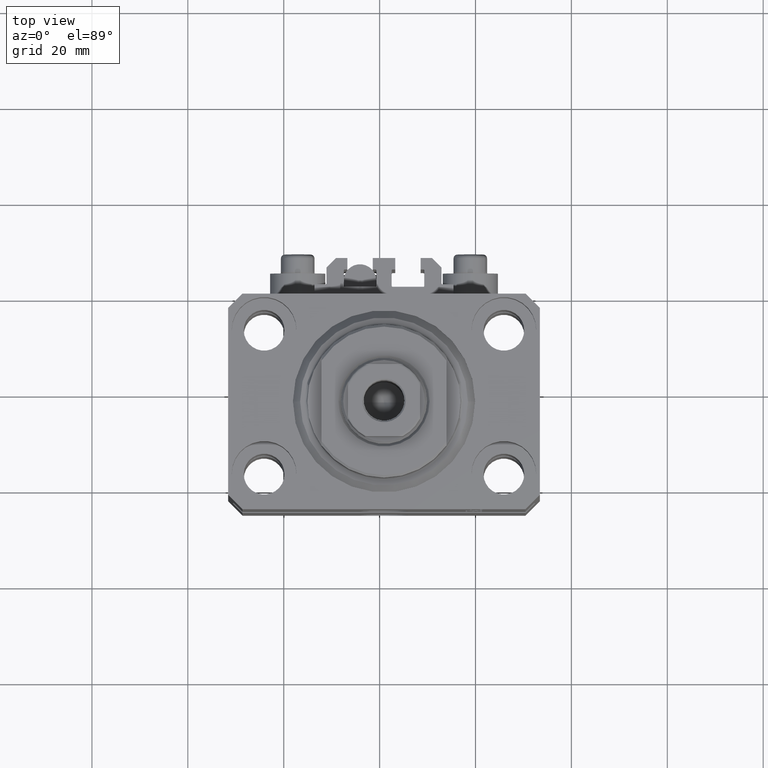
[diagram: clean part render]
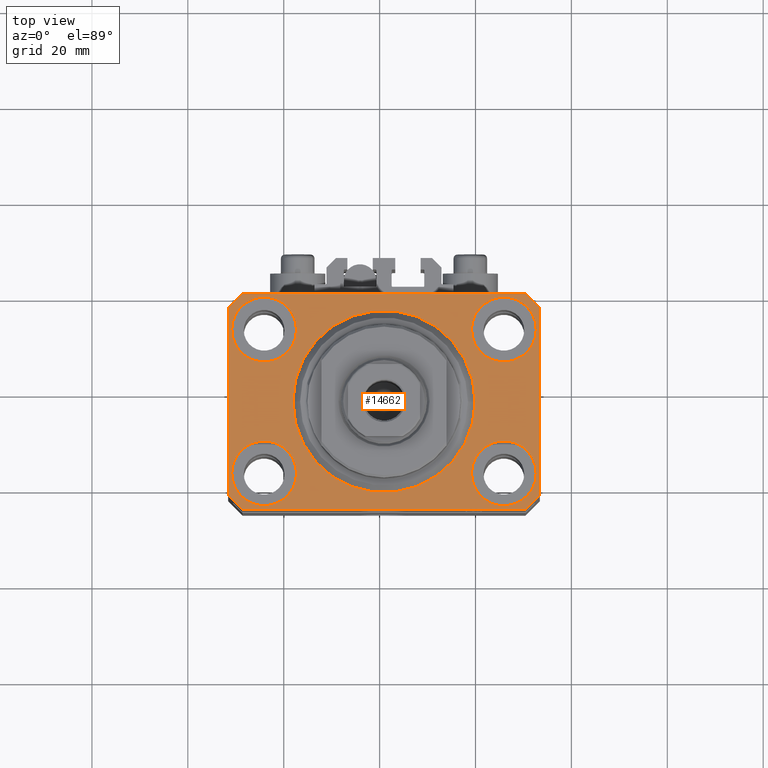
[diagram: same view with one face highlighted and labeled with its STEP entity id]
A machine part, top view. The second image highlights one B-rep face of the part: STEP entity #14662.
In plain terms, the highlighted planar face has unit normal (0, 0, 1).
Its self-contained STEP definition (entity closure, byte-faithful):
#88 = EDGE_CURVE ( 'NONE', #23724, #19859, #40568, .T. ) ;
#847 = ORIENTED_EDGE ( 'NONE', *, *, #43841, .T. ) ;
#1159 = CARTESIAN_POINT ( 'NONE',  ( 29.49999999999707967, 22.49999999999951328, 0.000000000000000000 ) ) ;
#1377 = EDGE_CURVE ( 'NONE', #38597, #22894, #27231, .T. ) ;
#1390 = ORIENTED_EDGE ( 'NONE', *, *, #25580, .T. ) ;
#1662 = VECTOR ( 'NONE', #37245, 1000.000000000000000 ) ;
#2057 = VERTEX_POINT ( 'NONE', #9798 ) ;
#2126 = DIRECTION ( 'NONE',  ( 0.000000000000000000, 0.000000000000000000, 1.000000000000000000 ) ) ;
#2645 = ORIENTED_EDGE ( 'NONE', *, *, #46951, .T. ) ;
#3162 = DIRECTION ( 'NONE',  ( 1.000000000000000000, 0.000000000000000000, 0.000000000000000000 ) ) ;
#3194 = CIRCLE ( 'NONE', #30299, 19.00000000000000000 ) ;
#3261 = CARTESIAN_POINT ( 'NONE',  ( -18.24999999995846167, -15.00000000000000000, 0.000000000000000000 ) ) ;
#3754 = ORIENTED_EDGE ( 'NONE', *, *, #12378, .F. ) ;
#3864 = LINE ( 'NONE', #40705, #9604 ) ;
#3946 = DIRECTION ( 'NONE',  ( 0.000000000000000000, -1.000000000000000000, 0.000000000000000000 ) ) ;
#4182 = ORIENTED_EDGE ( 'NONE', *, *, #45589, .T. ) ;
#4224 = DIRECTION ( 'NONE',  ( 0.000000000000000000, 0.000000000000000000, 1.000000000000000000 ) ) ;
#4245 = AXIS2_PLACEMENT_3D ( 'NONE', #18670, #18431, #3162 ) ;
#4725 = EDGE_LOOP ( 'NONE', ( #19856, #3754 ) ) ;
#5172 = DIRECTION ( 'NONE',  ( -0.7071067811865474617, -0.7071067811865474617, 0.000000000000000000 ) ) ;
#5337 = ORIENTED_EDGE ( 'NONE', *, *, #36815, .F. ) ;
#5353 = EDGE_CURVE ( 'NONE', #40491, #31925, #10438, .T. ) ;
#5462 = CARTESIAN_POINT ( 'NONE',  ( -31.75000000002253842, 15.00000000000000000, 0.000000000000000000 ) ) ;
#5734 = CARTESIAN_POINT ( 'NONE',  ( 0.000000000000000000, 0.000000000000000000, 0.000000000000000000 ) ) ;
#7035 = DIRECTION ( 'NONE',  ( 1.000000000000000000, 0.000000000000000000, 0.000000000000000000 ) ) ;
#7051 = EDGE_LOOP ( 'NONE', ( #22707, #28568 ) ) ;
#7092 = CARTESIAN_POINT ( 'NONE',  ( -29.49999999999650413, -22.49999999999949907, 0.000000000000000000 ) ) ;
#7159 = VERTEX_POINT ( 'NONE', #45702 ) ;
#7603 = CIRCLE ( 'NONE', #31605, 6.749999999958452790 ) ;
#7692 = CARTESIAN_POINT ( 'NONE',  ( 29.49999999999707967, 22.49999999999951328, 0.000000000000000000 ) ) ;
#9510 = AXIS2_PLACEMENT_3D ( 'NONE', #35889, #47295, #7035 ) ;
#9604 = VECTOR ( 'NONE', #10898, 1000.000000000000000 ) ;
#9655 = CARTESIAN_POINT ( 'NONE',  ( -29.49999999999650413, -22.49999999999949907, 0.000000000000000000 ) ) ;
#9798 = CARTESIAN_POINT ( 'NONE',  ( 32.49999999999702993, 19.49999999999945999, 0.000000000000000000 ) ) ;
#10192 = CIRCLE ( 'NONE', #28777, 6.749999999977465137 ) ;
#10241 = CARTESIAN_POINT ( 'NONE',  ( -31.75000000004154899, -15.00000000000000000, 0.000000000000000000 ) ) ;
#10369 = AXIS2_PLACEMENT_3D ( 'NONE', #35567, #2126, #38720 ) ;
#10404 = CARTESIAN_POINT ( 'NONE',  ( 32.49999999999702993, 19.49999999999945999, 0.000000000000000000 ) ) ;
#10438 = CIRCLE ( 'NONE', #4245, 6.749999999977465137 ) ;
#10898 = DIRECTION ( 'NONE',  ( 0.7071067811865483499, 0.7071067811865466846, 0.000000000000000000 ) ) ;
#10914 = EDGE_LOOP ( 'NONE', ( #33641, #37979 ) ) ;
#11257 = VERTEX_POINT ( 'NONE', #12615 ) ;
#11368 = CARTESIAN_POINT ( 'NONE',  ( 18.25000000002253842, -15.00000000000000000, 0.000000000000000000 ) ) ;
#11451 = LINE ( 'NONE', #47838, #21147 ) ;
#11529 = CARTESIAN_POINT ( 'NONE',  ( 31.74999999997746869, -15.00000000000000000, 0.000000000000000000 ) ) ;
#11921 = CARTESIAN_POINT ( 'NONE',  ( 0.000000000000000000, 0.000000000000000000, 0.000000000000000000 ) ) ;
#12378 = EDGE_CURVE ( 'NONE', #47072, #14259, #28475, .T. ) ;
#12615 = CARTESIAN_POINT ( 'NONE',  ( 18.25000000004154543, 15.00000000000000888, 0.000000000000000000 ) ) ;
#12814 = DIRECTION ( 'NONE',  ( 0.000000000000000000, 0.000000000000000000, 1.000000000000000000 ) ) ;
#14075 = VECTOR ( 'NONE', #17456, 1000.000000000000000 ) ;
#14259 = VERTEX_POINT ( 'NONE', #28378 ) ;
#14662 = ADVANCED_FACE ( 'NONE', ( #45926, #19017, #19984, #23614, #30412, #16114 ), #37423, .T. ) ;
#14749 = VERTEX_POINT ( 'NONE', #39110 ) ;
#14826 = LINE ( 'NONE', #29609, #36111 ) ;
#14897 = DIRECTION ( 'NONE',  ( 1.000000000000000000, 0.000000000000000000, 0.000000000000000000 ) ) ;
#15547 = CARTESIAN_POINT ( 'NONE',  ( -32.49999999999650413, 19.49999999999949907, 0.000000000000000000 ) ) ;
#15694 = CIRCLE ( 'NONE', #9510, 6.749999999958452790 ) ;
#16114 = FACE_OUTER_BOUND ( 'NONE', #18033, .T. ) ;
#17115 = DIRECTION ( 'NONE',  ( 1.000000000000000000, 0.000000000000000000, 0.000000000000000000 ) ) ;
#17175 = CARTESIAN_POINT ( 'NONE',  ( 31.74999999995845101, 15.00000000000000888, 0.000000000000000000 ) ) ;
#17456 = DIRECTION ( 'NONE',  ( -0.7071067811865352493, 0.7071067811865597852, 0.000000000000000000 ) ) ;
#17547 = EDGE_LOOP ( 'NONE', ( #30802, #43350 ) ) ;
#18033 = EDGE_LOOP ( 'NONE', ( #19394, #22162, #847, #1390, #46479, #4182, #2645, #27577 ) ) ;
#18431 = DIRECTION ( 'NONE',  ( 0.000000000000000000, 0.000000000000000000, 1.000000000000000000 ) ) ;
#18479 = DIRECTION ( 'NONE',  ( 1.000000000000000000, 1.176083712526788232E-16, 0.000000000000000000 ) ) ;
#18649 = VECTOR ( 'NONE', #18479, 1000.000000000000000 ) ;
#18670 = CARTESIAN_POINT ( 'NONE',  ( 25.00000000000000355, -15.00000000000000000, 0.000000000000000000 ) ) ;
#19017 = FACE_BOUND ( 'NONE', #39598, .T. ) ;
#19394 = ORIENTED_EDGE ( 'NONE', *, *, #35666, .T. ) ;
#19612 = CARTESIAN_POINT ( 'NONE',  ( -32.49999999999650413, -19.49999999999949907, 0.000000000000000000 ) ) ;
#19856 = ORIENTED_EDGE ( 'NONE', *, *, #33912, .F. ) ;
#19859 = VERTEX_POINT ( 'NONE', #3261 ) ;
#19973 = VERTEX_POINT ( 'NONE', #42262 ) ;
#19984 = FACE_BOUND ( 'NONE', #7051, .T. ) ;
#20206 = EDGE_CURVE ( 'NONE', #37803, #7159, #33495, .T. ) ;
#20511 = DIRECTION ( 'NONE',  ( 1.000000000000000000, 0.000000000000000000, 0.000000000000000000 ) ) ;
#21147 = VECTOR ( 'NONE', #3946, 1000.000000000000000 ) ;
#22019 = VECTOR ( 'NONE', #5172, 1000.000000000000114 ) ;
#22162 = ORIENTED_EDGE ( 'NONE', *, *, #1377, .T. ) ;
#22329 = DIRECTION ( 'NONE',  ( 0.7071067811865474617, -0.7071067811865474617, 0.000000000000000000 ) ) ;
#22707 = ORIENTED_EDGE ( 'NONE', *, *, #27738, .F. ) ;
#22881 = DIRECTION ( 'NONE',  ( 1.000000000000000000, 0.000000000000000000, -0.000000000000000000 ) ) ;
#22894 = VERTEX_POINT ( 'NONE', #15547 ) ;
#23614 = FACE_BOUND ( 'NONE', #4725, .T. ) ;
#23724 = VERTEX_POINT ( 'NONE', #10241 ) ;
#24241 = LINE ( 'NONE', #10404, #14075 ) ;
#24753 = EDGE_CURVE ( 'NONE', #19973, #33077, #31503, .T. ) ;
#25580 = EDGE_CURVE ( 'NONE', #45634, #37803, #14826, .T. ) ;
#25788 = CARTESIAN_POINT ( 'NONE',  ( 24.99999999999999645, 15.00000000000000888, 0.000000000000000000 ) ) ;
#25840 = AXIS2_PLACEMENT_3D ( 'NONE', #31665, #42563, #17115 ) ;
#26324 = CARTESIAN_POINT ( 'NONE',  ( -25.00000000000000355, 15.00000000000000000, 0.000000000000000000 ) ) ;
#26555 = DIRECTION ( 'NONE',  ( 1.000000000000000000, 0.000000000000000000, 0.000000000000000000 ) ) ;
#26801 = DIRECTION ( 'NONE',  ( 0.000000000000000000, 0.000000000000000000, 1.000000000000000000 ) ) ;
#27231 = LINE ( 'NONE', #28600, #22019 ) ;
#27577 = ORIENTED_EDGE ( 'NONE', *, *, #36630, .T. ) ;
#27738 = EDGE_CURVE ( 'NONE', #31097, #11257, #7603, .T. ) ;
#28141 = CARTESIAN_POINT ( 'NONE',  ( -29.49999999999650413, 22.49999999999949907, 0.000000000000000000 ) ) ;
#28378 = CARTESIAN_POINT ( 'NONE',  ( -18.24999999997747224, 15.00000000000000000, 0.000000000000000000 ) ) ;
#28475 = CIRCLE ( 'NONE', #33092, 6.750000000022533087 ) ;
#28568 = ORIENTED_EDGE ( 'NONE', *, *, #41956, .F. ) ;
#28600 = CARTESIAN_POINT ( 'NONE',  ( -29.49999999999650413, 22.49999999999949907, 0.000000000000000000 ) ) ;
#28777 = AXIS2_PLACEMENT_3D ( 'NONE', #30998, #12814, #38486 ) ;
#28993 = LINE ( 'NONE', #43773, #32878 ) ;
#29160 = AXIS2_PLACEMENT_3D ( 'NONE', #5734, #42803, #20511 ) ;
#29290 = VERTEX_POINT ( 'NONE', #1159 ) ;
#29490 = DIRECTION ( 'NONE',  ( 0.000000000000000000, 0.000000000000000000, 1.000000000000000000 ) ) ;
#29609 = CARTESIAN_POINT ( 'NONE',  ( -32.49999999999650413, -19.49999999999949907, 0.000000000000000000 ) ) ;
#30169 = DIRECTION ( 'NONE',  ( 0.000000000000000000, 0.000000000000000000, 1.000000000000000000 ) ) ;
#30299 = AXIS2_PLACEMENT_3D ( 'NONE', #11921, #30347, #38087 ) ;
#30347 = DIRECTION ( 'NONE',  ( 0.000000000000000000, 0.000000000000000000, 1.000000000000000000 ) ) ;
#30412 = FACE_BOUND ( 'NONE', #10914, .T. ) ;
#30449 = CARTESIAN_POINT ( 'NONE',  ( -25.00000000000000355, 15.00000000000000000, 0.000000000000000000 ) ) ;
#30657 = CARTESIAN_POINT ( 'NONE',  ( 0.000000000000000000, 0.000000000000000000, 0.000000000000000000 ) ) ;
#30802 = ORIENTED_EDGE ( 'NONE', *, *, #46517, .F. ) ;
#30998 = CARTESIAN_POINT ( 'NONE',  ( 25.00000000000000355, -15.00000000000000000, 0.000000000000000000 ) ) ;
#31043 = AXIS2_PLACEMENT_3D ( 'NONE', #30449, #26801, #26555 ) ;
#31097 = VERTEX_POINT ( 'NONE', #17175 ) ;
#31503 = CIRCLE ( 'NONE', #29160, 19.00000000000000000 ) ;
#31605 = AXIS2_PLACEMENT_3D ( 'NONE', #25788, #4224, #14897 ) ;
#31665 = CARTESIAN_POINT ( 'NONE',  ( -25.00000000000000355, -15.00000000000000000, 0.000000000000000000 ) ) ;
#31925 = VERTEX_POINT ( 'NONE', #11368 ) ;
#32878 = VECTOR ( 'NONE', #38947, 1000.000000000000000 ) ;
#33077 = VERTEX_POINT ( 'NONE', #44055 ) ;
#33092 = AXIS2_PLACEMENT_3D ( 'NONE', #26324, #29490, #36752 ) ;
#33380 = LINE ( 'NONE', #7692, #1662 ) ;
#33495 = LINE ( 'NONE', #7092, #18649 ) ;
#33641 = ORIENTED_EDGE ( 'NONE', *, *, #38466, .F. ) ;
#33912 = EDGE_CURVE ( 'NONE', #14259, #47072, #44166, .T. ) ;
#35567 = CARTESIAN_POINT ( 'NONE',  ( -25.00000000000000355, -15.00000000000000000, 0.000000000000000000 ) ) ;
#35666 = EDGE_CURVE ( 'NONE', #29290, #38597, #33380, .T. ) ;
#35889 = CARTESIAN_POINT ( 'NONE',  ( 24.99999999999999645, 15.00000000000000888, 0.000000000000000000 ) ) ;
#36111 = VECTOR ( 'NONE', #22329, 1000.000000000000114 ) ;
#36630 = EDGE_CURVE ( 'NONE', #2057, #29290, #24241, .T. ) ;
#36752 = DIRECTION ( 'NONE',  ( 1.000000000000000000, 0.000000000000000000, 0.000000000000000000 ) ) ;
#36815 = EDGE_CURVE ( 'NONE', #31925, #40491, #10192, .T. ) ;
#37245 = DIRECTION ( 'NONE',  ( -1.000000000000000000, -2.352167425053553784E-16, 0.000000000000000000 ) ) ;
#37423 = PLANE ( 'NONE',  #40913 ) ;
#37803 = VERTEX_POINT ( 'NONE', #9655 ) ;
#37812 = ORIENTED_EDGE ( 'NONE', *, *, #5353, .F. ) ;
#37979 = ORIENTED_EDGE ( 'NONE', *, *, #24753, .F. ) ;
#38087 = DIRECTION ( 'NONE',  ( 1.000000000000000000, 0.000000000000000000, 0.000000000000000000 ) ) ;
#38466 = EDGE_CURVE ( 'NONE', #33077, #19973, #3194, .T. ) ;
#38486 = DIRECTION ( 'NONE',  ( 1.000000000000000000, 0.000000000000000000, 0.000000000000000000 ) ) ;
#38597 = VERTEX_POINT ( 'NONE', #28141 ) ;
#38720 = DIRECTION ( 'NONE',  ( 1.000000000000000000, 0.000000000000000000, 0.000000000000000000 ) ) ;
#38947 = DIRECTION ( 'NONE',  ( 1.334402673828349134E-14, 1.000000000000000000, 0.000000000000000000 ) ) ;
#39110 = CARTESIAN_POINT ( 'NONE',  ( 32.49999999999651124, -19.49999999999949196, 0.000000000000000000 ) ) ;
#39598 = EDGE_LOOP ( 'NONE', ( #37812, #5337 ) ) ;
#40491 = VERTEX_POINT ( 'NONE', #11529 ) ;
#40568 = CIRCLE ( 'NONE', #10369, 6.750000000041541881 ) ;
#40705 = CARTESIAN_POINT ( 'NONE',  ( 29.49999999999650413, -22.49999999999949196, 0.000000000000000000 ) ) ;
#40913 = AXIS2_PLACEMENT_3D ( 'NONE', #30657, #30169, #22881 ) ;
#41956 = EDGE_CURVE ( 'NONE', #11257, #31097, #15694, .T. ) ;
#42262 = CARTESIAN_POINT ( 'NONE',  ( -19.00000000000000000, 2.326828918379970970E-15, 0.000000000000000000 ) ) ;
#42563 = DIRECTION ( 'NONE',  ( 0.000000000000000000, 0.000000000000000000, 1.000000000000000000 ) ) ;
#42803 = DIRECTION ( 'NONE',  ( 0.000000000000000000, 0.000000000000000000, 1.000000000000000000 ) ) ;
#43350 = ORIENTED_EDGE ( 'NONE', *, *, #88, .F. ) ;
#43773 = CARTESIAN_POINT ( 'NONE',  ( 32.49999999999651124, -19.49999999999949196, 0.000000000000000000 ) ) ;
#43841 = EDGE_CURVE ( 'NONE', #22894, #45634, #11451, .T. ) ;
#44055 = CARTESIAN_POINT ( 'NONE',  ( 19.00000000000000000, 0.000000000000000000, 0.000000000000000000 ) ) ;
#44166 = CIRCLE ( 'NONE', #31043, 6.750000000022533087 ) ;
#45589 = EDGE_CURVE ( 'NONE', #7159, #14749, #3864, .T. ) ;
#45634 = VERTEX_POINT ( 'NONE', #19612 ) ;
#45702 = CARTESIAN_POINT ( 'NONE',  ( 29.49999999999650413, -22.49999999999949196, 0.000000000000000000 ) ) ;
#45926 = FACE_BOUND ( 'NONE', #17547, .T. ) ;
#46479 = ORIENTED_EDGE ( 'NONE', *, *, #20206, .T. ) ;
#46517 = EDGE_CURVE ( 'NONE', #19859, #23724, #47569, .T. ) ;
#46951 = EDGE_CURVE ( 'NONE', #14749, #2057, #28993, .T. ) ;
#47072 = VERTEX_POINT ( 'NONE', #5462 ) ;
#47295 = DIRECTION ( 'NONE',  ( 0.000000000000000000, 0.000000000000000000, 1.000000000000000000 ) ) ;
#47569 = CIRCLE ( 'NONE', #25840, 6.750000000041541881 ) ;
#47838 = CARTESIAN_POINT ( 'NONE',  ( -32.49999999999650413, 19.49999999999949907, 0.000000000000000000 ) ) ;